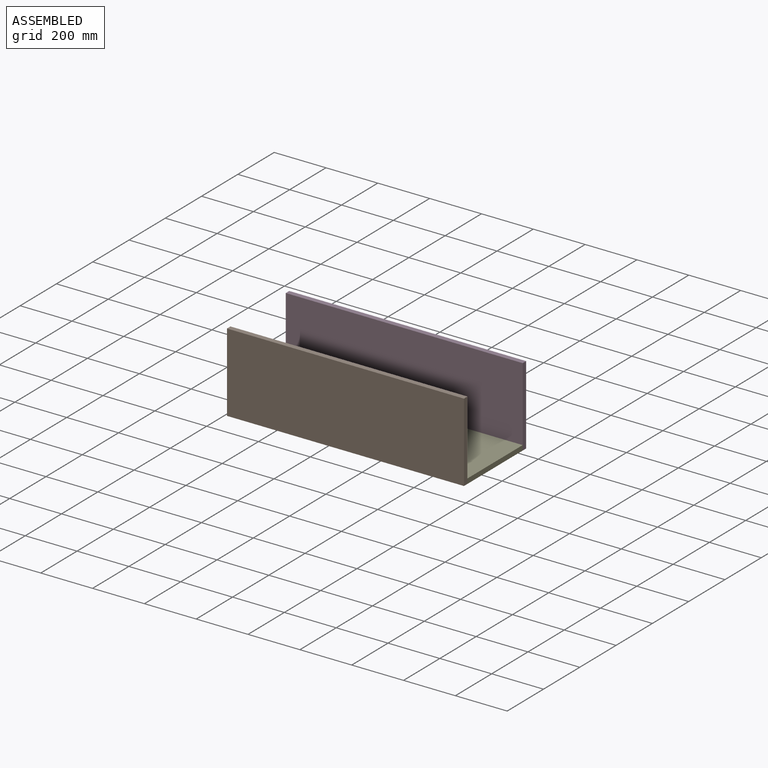
[diagram: assembled view]
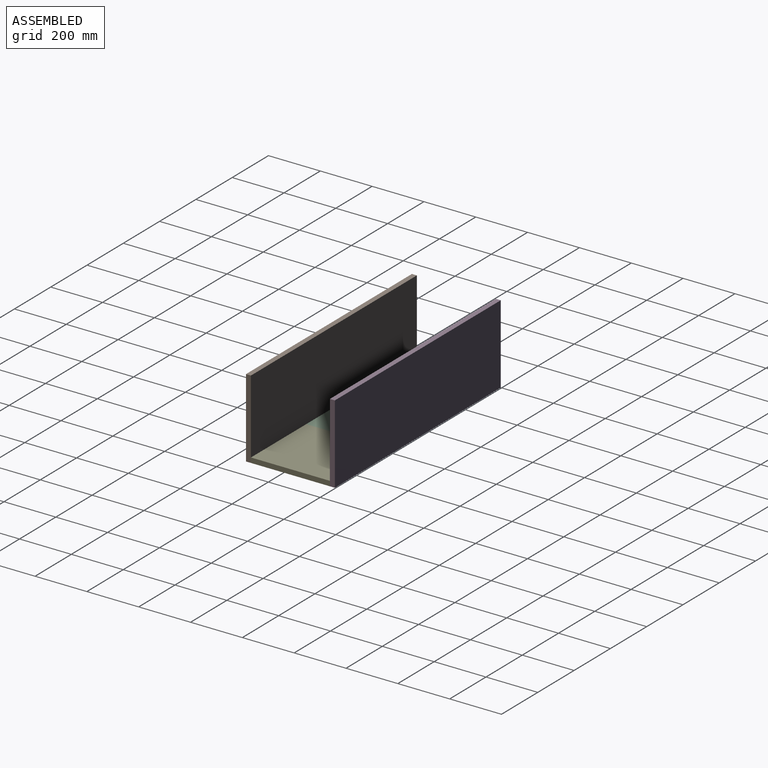
[diagram: assembled view, second angle]
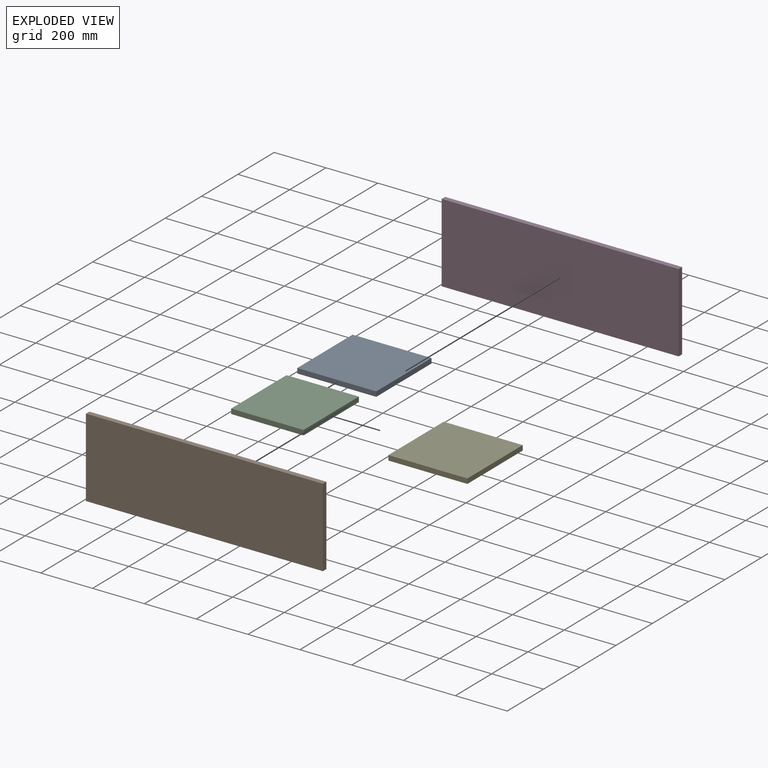
[diagram: exploded view]
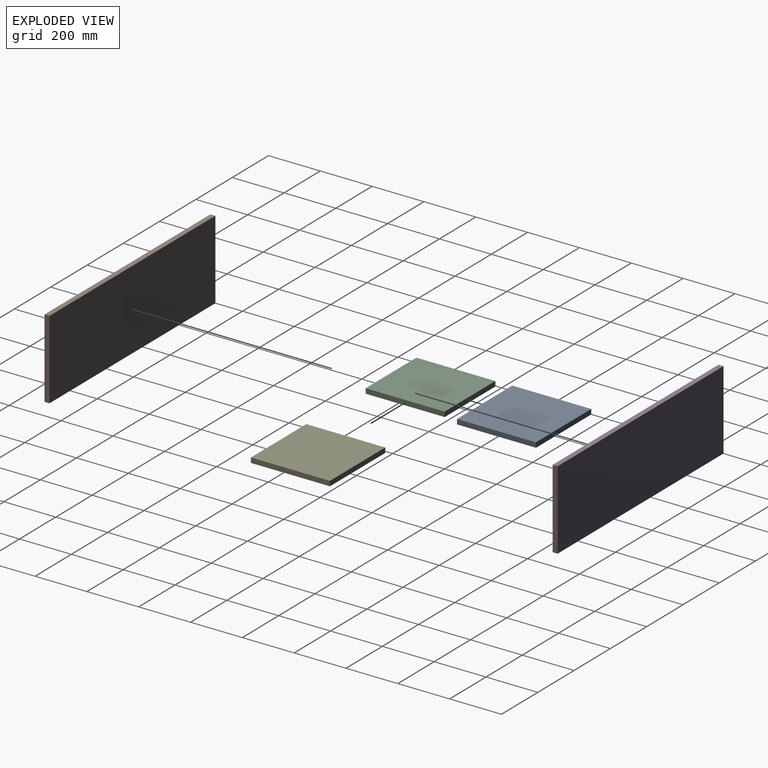
[diagram: exploded view, second angle]
ASSEMBLY  parts=5 mates=4
PART A: 6 faces, bbox 304.8x304.8x19.1 mm
  f0: plane 304.8x19.05mm, normal (-1,0,0), area 5806.4mm2, adj f1,f3,f4,f5
  f1: plane 304.8x19.05mm, normal (0,-1,0), area 5806.4mm2, adj f0,f2,f4,f5
  f2: plane 304.8x19.05mm, normal (1,0,0), area 5806.4mm2, adj f1,f3,f4,f5
  f3: plane 304.8x19.05mm, normal (0,1,0), area 5806.4mm2, adj f0,f2,f4,f5
  f4: plane 304.8x304.8mm, normal (0,0,1), area 92903mm2, adj f0,f1,f2,f3
  f5: plane 304.8x304.8mm, normal (0,0,-1), area 92903mm2, adj f0,f1,f2,f3
PART B: 6 faces, bbox 914.4x19.1x304.8 mm
  f0: plane 914.4x19.05mm, normal (0,0,-1), area 17419.3mm2, adj f1,f3,f4,f5
  f1: plane 304.8x19.05mm, normal (1,0,0), area 5806.4mm2, adj f0,f2,f4,f5
  f2: plane 914.4x19.05mm, normal (0,0,1), area 17419.3mm2, adj f1,f3,f4,f5
  f3: plane 304.8x19.05mm, normal (-1,0,0), area 5806.4mm2, adj f0,f2,f4,f5
  f4: plane 914.4x304.8mm, normal (0,-1,0), area 278709.1mm2, adj f0,f1,f2,f3
  f5: plane 914.4x304.8mm, normal (0,1,0), area 278709.1mm2, adj f0,f1,f2,f3
PART C: 6 faces, bbox 279.4x304.8x19.1 mm
  f0: plane 304.8x19.05mm, normal (-1,0,0), area 5806.4mm2, adj f1,f3,f4,f5
  f1: plane 279.4x19.05mm, normal (0,-1,0), area 5322.6mm2, adj f0,f2,f4,f5
  f2: plane 304.8x19.05mm, normal (1,0,0), area 5806.4mm2, adj f1,f3,f4,f5
  f3: plane 279.4x19.05mm, normal (0,1,0), area 5322.6mm2, adj f0,f2,f4,f5
  f4: plane 304.8x279.4mm, normal (0,0,1), area 85161.1mm2, adj f0,f1,f2,f3
  f5: plane 304.8x279.4mm, normal (0,0,-1), area 85161.1mm2, adj f0,f1,f2,f3
PART D: same geometry as B
PART E: same geometry as A
PLACE A t=(-220.32,44.57,84.18)mm
PLACE B t=(84.48,-107.83,236.58)mm
PLACE C t=(97.18,44.57,84.18)mm
PLACE D t=(84.48,216.02,236.58)mm
PLACE E t=(389.28,44.57,84.18)mm
MATE planar A.f3 <-> D.f4  axis (0,1,0) through (-372.72,196.97,84.18)mm
MATE planar B.f5 <-> A.f1  axis (0,1,0) through (-372.72,-107.83,84.18)mm
MATE planar E.f3 <-> D.f4  axis (0,1,0) through (541.68,196.97,84.18)mm
MATE planar C.f2 <-> E.f0  axis (1,0,0) through (236.88,44.57,93.71)mm
